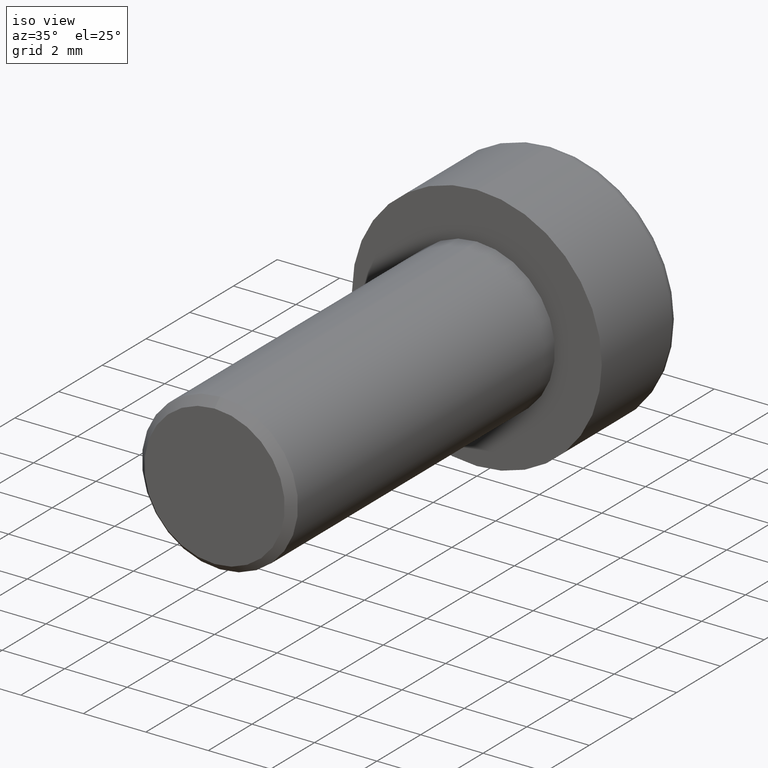
[diagram: clean part render]
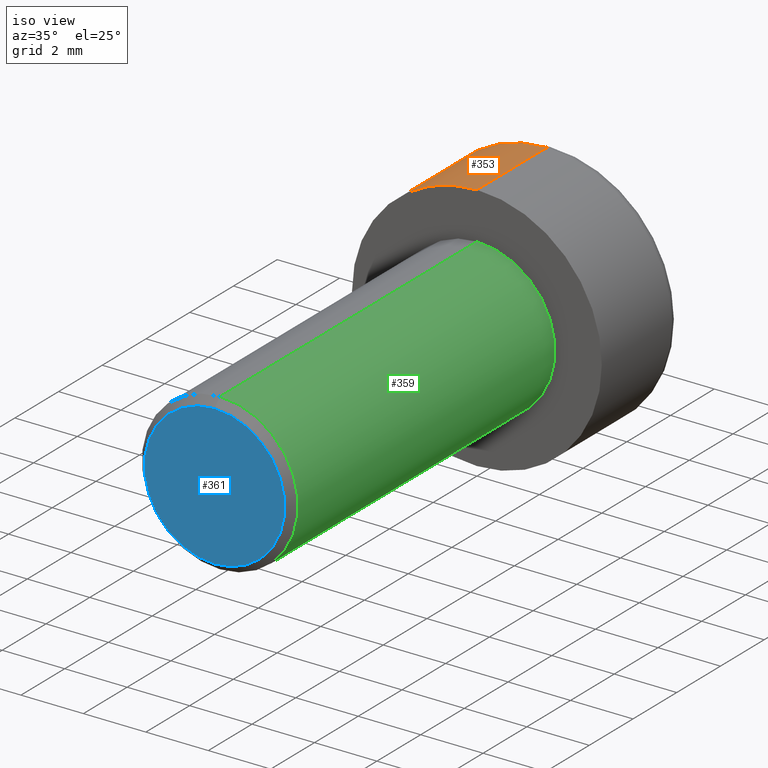
[diagram: same view with three faces highlighted in distinct colors, each labeled with its STEP entity id]
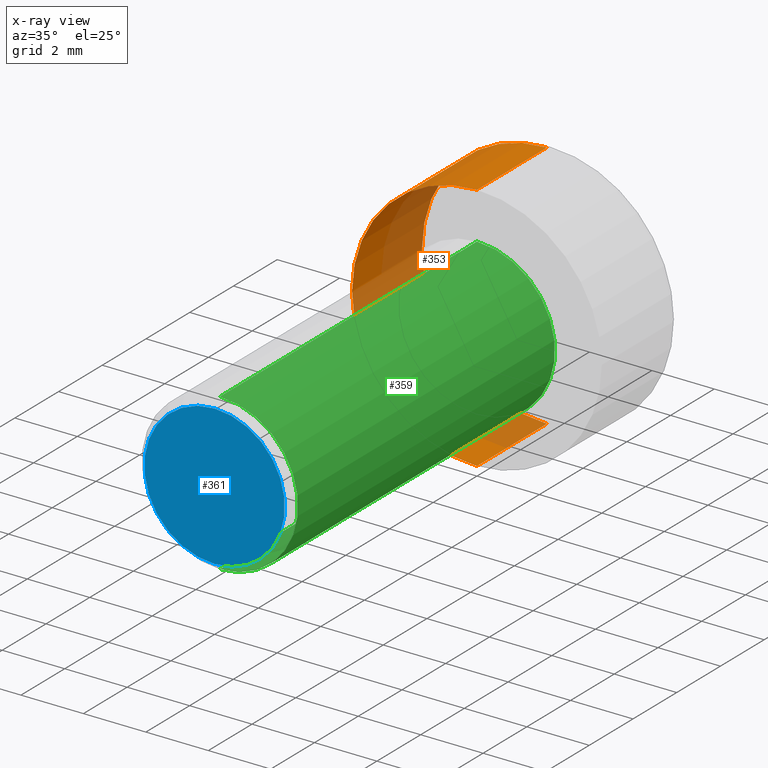
[diagram: x-ray of the same camera — body ghosted, the three highlighted faces saturated]
A machine part, iso view with three faces highlighted in distinct colors.
The next image is the same camera in x-ray (body ghosted, the three faces saturated) — at least one of them is partly hidden behind the body in this view.
Their STEP definitions:

[orange] entity #353 — the highlighted cylindrical surface (partial cylindrical patch) has radius 4 mm, axis along (-0, -1, -0).
#4 = LINE ( 'NONE', #99, #7 ) ;
#7 = VECTOR ( 'NONE', #126, 1000.000000000000000 ) ;
#9 = VECTOR ( 'NONE', #82, 1000.000000000000000 ) ;
#10 = LINE ( 'NONE', #96, #9 ) ;
#11 = CIRCLE ( 'NONE', #463, 4.000000000000000000 ) ;
#46 = DIRECTION ( 'NONE',  ( 0.0000000000000000000, 0.0000000000000000000, 1.000000000000000000 ) ) ;
#48 = DIRECTION ( 'NONE',  ( -0.0000000000000000000, -1.000000000000000000, -0.0000000000000000000 ) ) ;
#52 = CARTESIAN_POINT ( 'NONE',  ( 0.0000000000000000000, 3.200000000000000200, 0.0000000000000000000 ) ) ;
#82 = DIRECTION ( 'NONE',  ( -0.0000000000000000000, -1.000000000000000000, -0.0000000000000000000 ) ) ;
#96 = CARTESIAN_POINT ( 'NONE',  ( 0.0000000000000000000, 3.500000000000000000, -4.000000000000000000 ) ) ;
#99 = CARTESIAN_POINT ( 'NONE',  ( 4.898587196589412800E-016, 3.500000000000000000, 4.000000000000000000 ) ) ;
#126 = DIRECTION ( 'NONE',  ( -0.0000000000000000000, -1.000000000000000000, -0.0000000000000000000 ) ) ;
#162 = DIRECTION ( 'NONE',  ( 0.0000000000000000000, 0.0000000000000000000, 1.000000000000000000 ) ) ;
#163 = DIRECTION ( 'NONE',  ( 0.0000000000000000000, 1.000000000000000000, 0.0000000000000000000 ) ) ;
#164 = CARTESIAN_POINT ( 'NONE',  ( 0.0000000000000000000, 0.0000000000000000000, 0.0000000000000000000 ) ) ;
#173 = CARTESIAN_POINT ( 'NONE',  ( 0.0000000000000000000, 3.500000000000000000, 0.0000000000000000000 ) ) ;
#174 = DIRECTION ( 'NONE',  ( -0.0000000000000000000, -1.000000000000000000, -0.0000000000000000000 ) ) ;
#198 = DIRECTION ( 'NONE',  ( 0.0000000000000000000, 0.0000000000000000000, -1.000000000000000000 ) ) ;
#202 = CARTESIAN_POINT ( 'NONE',  ( 4.898587196589412800E-016, 3.200000000000000200, 4.000000000000000000 ) ) ;
#284 = FACE_OUTER_BOUND ( 'NONE', #397, .T. ) ;
#305 = CARTESIAN_POINT ( 'NONE',  ( 4.898587196589412800E-016, 0.0000000000000000000, 4.000000000000000000 ) ) ;
#313 = CARTESIAN_POINT ( 'NONE',  ( 0.0000000000000000000, 0.0000000000000000000, -4.000000000000000000 ) ) ;
#315 = CARTESIAN_POINT ( 'NONE',  ( 0.0000000000000000000, 3.200000000000000200, -4.000000000000000000 ) ) ;
#320 = VERTEX_POINT ( 'NONE', #315 ) ;
#325 = VERTEX_POINT ( 'NONE', #313 ) ;
#328 = VERTEX_POINT ( 'NONE', #305 ) ;
#337 = VERTEX_POINT ( 'NONE', #202 ) ;
#353 = ADVANCED_FACE ( 'NONE', ( #284 ), #543, .T. ) ;
#397 = EDGE_LOOP ( 'NONE', ( #524, #517, #514, #521 ) ) ;
#416 = EDGE_CURVE ( 'NONE', #320, #325, #10, .T. ) ;
#417 = EDGE_CURVE ( 'NONE', #337, #328, #4, .T. ) ;
#419 = EDGE_CURVE ( 'NONE', #337, #320, #11, .T. ) ;
#430 = EDGE_CURVE ( 'NONE', #325, #328, #563, .T. ) ;
#454 = AXIS2_PLACEMENT_3D ( 'NONE', #173, #174, #198 ) ;
#463 = AXIS2_PLACEMENT_3D ( 'NONE', #52, #48, #46 ) ;
#470 = AXIS2_PLACEMENT_3D ( 'NONE', #164, #163, #162 ) ;
#514 = ORIENTED_EDGE ( 'NONE', *, *, #416, .T. ) ;
#517 = ORIENTED_EDGE ( 'NONE', *, *, #419, .T. ) ;
#521 = ORIENTED_EDGE ( 'NONE', *, *, #430, .T. ) ;
#524 = ORIENTED_EDGE ( 'NONE', *, *, #417, .F. ) ;
#543 = CYLINDRICAL_SURFACE ( 'NONE', #454, 4.000000000000000000 ) ;
#563 = CIRCLE ( 'NONE', #470, 4.000000000000000000 ) ;

[blue] entity #361 — the highlighted planar face has unit normal (0, -1, 0).
#98 = DIRECTION ( 'NONE',  ( 0.0000000000000000000, 0.0000000000000000000, -1.000000000000000000 ) ) ;
#101 = DIRECTION ( 'NONE',  ( 0.0000000000000000000, -1.000000000000000000, 0.0000000000000000000 ) ) ;
#104 = CARTESIAN_POINT ( 'NONE',  ( 0.0000000000000000000, -12.00000000000000000, 0.0000000000000000000 ) ) ;
#120 = DIRECTION ( 'NONE',  ( 0.0000000000000000000, -0.0000000000000000000, -1.000000000000000000 ) ) ;
#122 = DIRECTION ( 'NONE',  ( 0.0000000000000000000, -1.000000000000000000, 0.0000000000000000000 ) ) ;
#127 = PLANE ( 'NONE',  #459 ) ;
#134 = CARTESIAN_POINT ( 'NONE',  ( 0.0000000000000000000, -12.00000000000000000, 0.0000000000000000000 ) ) ;
#154 = CARTESIAN_POINT ( 'NONE',  ( 0.0000000000000000000, -12.00000000000000000, 2.249999999999998700 ) ) ;
#179 = DIRECTION ( 'NONE',  ( 0.0000000000000000000, 0.0000000000000000000, -1.000000000000000000 ) ) ;
#180 = DIRECTION ( 'NONE',  ( 0.0000000000000000000, -1.000000000000000000, 0.0000000000000000000 ) ) ;
#181 = CARTESIAN_POINT ( 'NONE',  ( 0.0000000000000000000, -12.00000000000000000, 0.0000000000000000000 ) ) ;
#188 = CARTESIAN_POINT ( 'NONE',  ( 2.908536147974963200E-016, -12.00000000000000000, -2.249999999999998700 ) ) ;
#237 = CIRCLE ( 'NONE', #473, 2.249999999999998700 ) ;
#283 = CIRCLE ( 'NONE', #468, 2.249999999999998700 ) ;
#329 = VERTEX_POINT ( 'NONE', #154 ) ;
#344 = VERTEX_POINT ( 'NONE', #188 ) ;
#345 = EDGE_LOOP ( 'NONE', ( #386, #374 ) ) ;
#361 = ADVANCED_FACE ( 'NONE', ( #544 ), #127, .T. ) ;
#374 = ORIENTED_EDGE ( 'NONE', *, *, #427, .T. ) ;
#386 = ORIENTED_EDGE ( 'NONE', *, *, #449, .T. ) ;
#427 = EDGE_CURVE ( 'NONE', #344, #329, #283, .T. ) ;
#449 = EDGE_CURVE ( 'NONE', #329, #344, #237, .T. ) ;
#459 = AXIS2_PLACEMENT_3D ( 'NONE', #134, #122, #120 ) ;
#468 = AXIS2_PLACEMENT_3D ( 'NONE', #181, #180, #179 ) ;
#473 = AXIS2_PLACEMENT_3D ( 'NONE', #104, #101, #98 ) ;
#544 = FACE_OUTER_BOUND ( 'NONE', #345, .T. ) ;

[green] entity #359 — the highlighted cylindrical surface (partial cylindrical patch) has radius 2.5 mm, axis along (-0, 1, -0).
#21 = DIRECTION ( 'NONE',  ( -0.0000000000000000000, 1.000000000000000000, -0.0000000000000000000 ) ) ;
#36 = DIRECTION ( 'NONE',  ( -0.0000000000000000000, 1.000000000000000000, -0.0000000000000000000 ) ) ;
#54 = CARTESIAN_POINT ( 'NONE',  ( 0.0000000000000000000, -12.00000000000000000, 2.500000000000000000 ) ) ;
#84 = CARTESIAN_POINT ( 'NONE',  ( 3.061616997868383100E-016, 0.0000000000000000000, -2.500000000000000000 ) ) ;
#85 = CARTESIAN_POINT ( 'NONE',  ( 3.061616997868383100E-016, -11.74999999999999600, -2.500000000000000000 ) ) ;
#139 = CARTESIAN_POINT ( 'NONE',  ( 0.0000000000000000000, -12.00000000000000000, 0.0000000000000000000 ) ) ;
#152 = DIRECTION ( 'NONE',  ( -0.0000000000000000000, 1.000000000000000000, -0.0000000000000000000 ) ) ;
#153 = DIRECTION ( 'NONE',  ( 0.0000000000000000000, 0.0000000000000000000, 1.000000000000000000 ) ) ;
#172 = DIRECTION ( 'NONE',  ( 0.0000000000000000000, 0.0000000000000000000, -1.000000000000000000 ) ) ;
#175 = DIRECTION ( 'NONE',  ( 0.0000000000000000000, 1.000000000000000000, 0.0000000000000000000 ) ) ;
#176 = CARTESIAN_POINT ( 'NONE',  ( 0.0000000000000000000, -11.74999999999999600, 0.0000000000000000000 ) ) ;
#192 = DIRECTION ( 'NONE',  ( 0.0000000000000000000, 0.0000000000000000000, 1.000000000000000000 ) ) ;
#193 = DIRECTION ( 'NONE',  ( -0.0000000000000000000, -1.000000000000000000, -0.0000000000000000000 ) ) ;
#196 = CARTESIAN_POINT ( 'NONE',  ( 0.0000000000000000000, 0.0000000000000000000, 0.0000000000000000000 ) ) ;
#197 = CARTESIAN_POINT ( 'NONE',  ( 3.061616997868383100E-016, -12.00000000000000000, -2.500000000000000000 ) ) ;
#199 = CARTESIAN_POINT ( 'NONE',  ( 0.0000000000000000000, 0.0000000000000000000, 2.500000000000000000 ) ) ;
#213 = CYLINDRICAL_SURFACE ( 'NONE', #457, 2.500000000000000000 ) ;
#288 = CIRCLE ( 'NONE', #469, 2.500000000000000000 ) ;
#301 = VECTOR ( 'NONE', #21, 1000.000000000000000 ) ;
#302 = CIRCLE ( 'NONE', #467, 2.500000000000000000 ) ;
#303 = LINE ( 'NONE', #54, #301 ) ;
#314 = CARTESIAN_POINT ( 'NONE',  ( 0.0000000000000000000, -11.74999999999999600, 2.500000000000000000 ) ) ;
#322 = VERTEX_POINT ( 'NONE', #314 ) ;
#330 = VERTEX_POINT ( 'NONE', #85 ) ;
#333 = VERTEX_POINT ( 'NONE', #199 ) ;
#334 = VERTEX_POINT ( 'NONE', #84 ) ;
#359 = ADVANCED_FACE ( 'NONE', ( #545 ), #213, .T. ) ;
#368 = ORIENTED_EDGE ( 'NONE', *, *, #424, .T. ) ;
#383 = ORIENTED_EDGE ( 'NONE', *, *, #423, .F. ) ;
#389 = ORIENTED_EDGE ( 'NONE', *, *, #428, .T. ) ;
#390 = ORIENTED_EDGE ( 'NONE', *, *, #425, .T. ) ;
#396 = EDGE_LOOP ( 'NONE', ( #389, #390, #368, #383 ) ) ;
#423 = EDGE_CURVE ( 'NONE', #322, #333, #303, .T. ) ;
#424 = EDGE_CURVE ( 'NONE', #334, #333, #302, .T. ) ;
#425 = EDGE_CURVE ( 'NONE', #330, #334, #558, .T. ) ;
#428 = EDGE_CURVE ( 'NONE', #322, #330, #288, .T. ) ;
#457 = AXIS2_PLACEMENT_3D ( 'NONE', #139, #152, #153 ) ;
#467 = AXIS2_PLACEMENT_3D ( 'NONE', #196, #193, #192 ) ;
#469 = AXIS2_PLACEMENT_3D ( 'NONE', #176, #175, #172 ) ;
#545 = FACE_OUTER_BOUND ( 'NONE', #396, .T. ) ;
#558 = LINE ( 'NONE', #197, #561 ) ;
#561 = VECTOR ( 'NONE', #36, 1000.000000000000000 ) ;